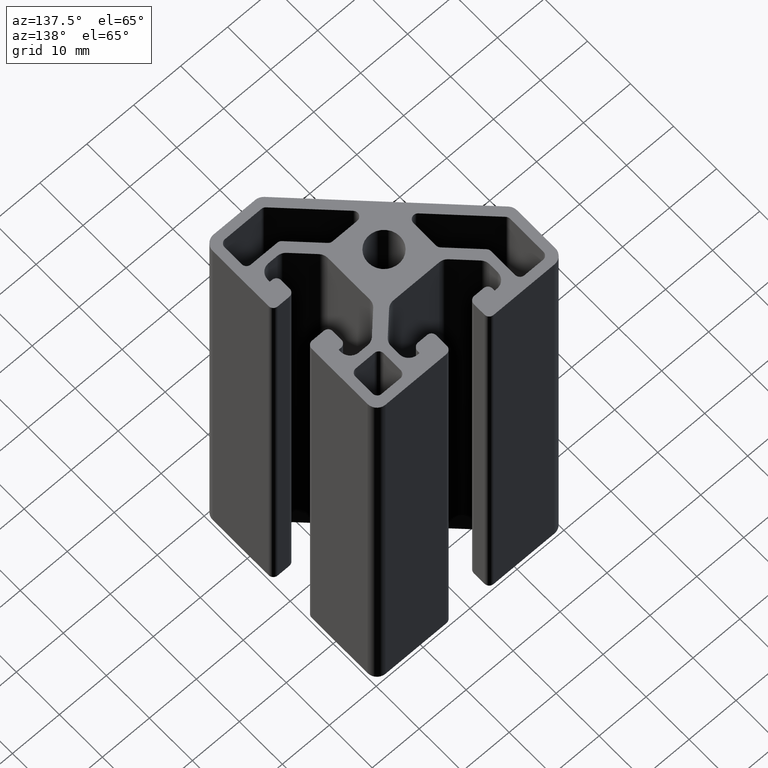
[diagram: clean part render]
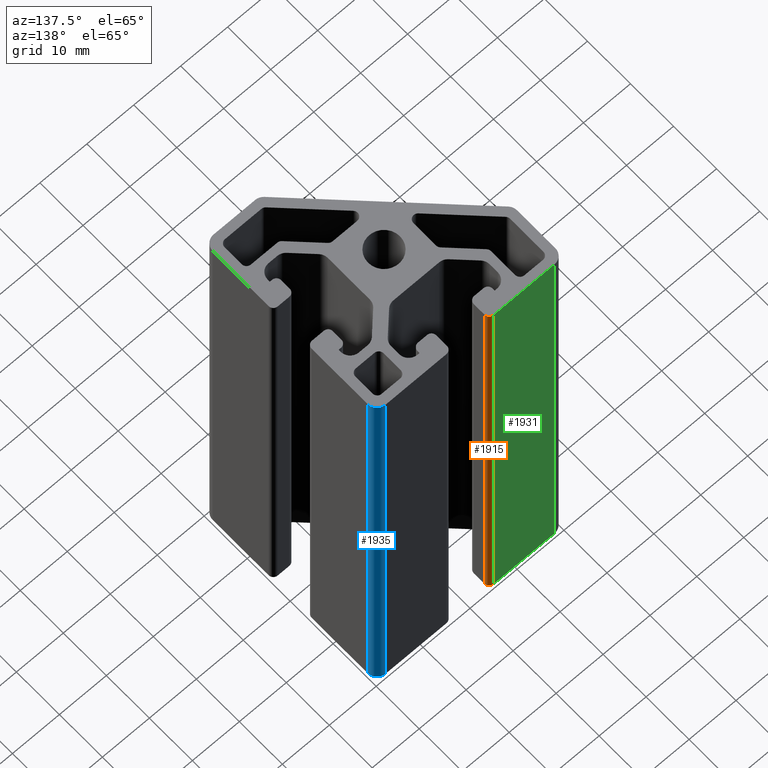
[diagram: same view with three faces highlighted in distinct colors, each labeled with its STEP entity id]
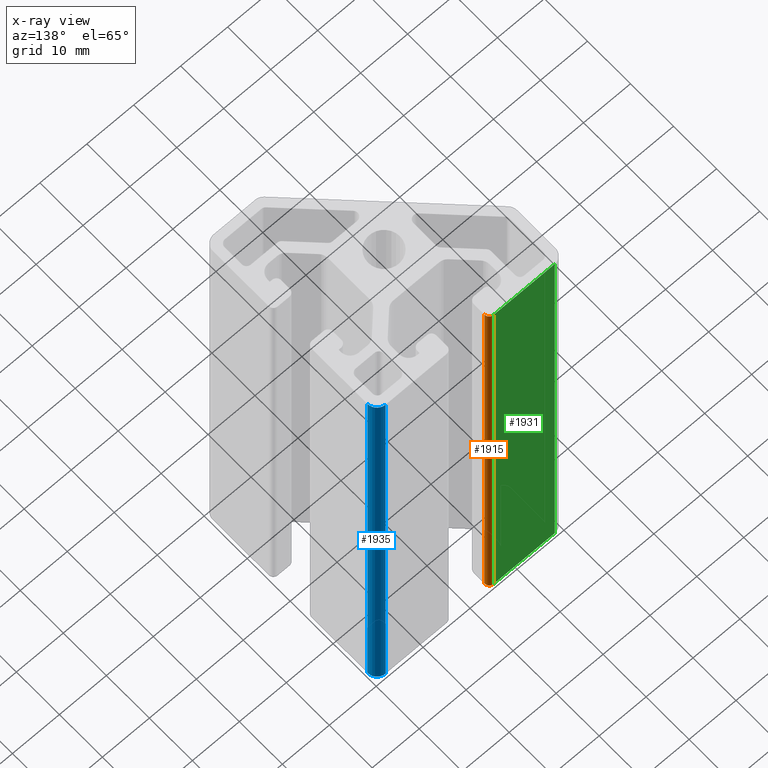
[diagram: x-ray of the same camera — body ghosted, the three highlighted faces saturated]
A machine part, auxiliary view with three faces highlighted in distinct colors.
The next image is the same camera in x-ray (body ghosted, the three faces saturated) — at least one of them is partly hidden behind the body in this view.
Their STEP definitions:

[orange] entity #1915 — the highlighted cylindrical surface (edge-blend (fillet) strip) has radius 1 mm, axis along (0, 0, 1).
#148=FACE_OUTER_BOUND('',#246,.T.);
#246=EDGE_LOOP('',(#1518,#1519,#1520,#1521));
#426=LINE('',#3148,#618);
#427=LINE('',#3154,#619);
#618=VECTOR('',#2570,100.);
#619=VECTOR('',#2577,100.);
#734=CIRCLE('',#2087,0.99999800405115);
#735=CIRCLE('',#2088,0.99999800405115);
#904=VERTEX_POINT('',#3144);
#905=VERTEX_POINT('',#3146);
#906=VERTEX_POINT('',#3150);
#907=VERTEX_POINT('',#3152);
#1164=EDGE_CURVE('',#905,#904,#426,.T.);
#1165=EDGE_CURVE('',#904,#906,#734,.T.);
#1166=EDGE_CURVE('',#907,#905,#735,.T.);
#1167=EDGE_CURVE('',#906,#907,#427,.T.);
#1518=ORIENTED_EDGE('',*,*,#1165,.F.);
#1519=ORIENTED_EDGE('',*,*,#1164,.F.);
#1520=ORIENTED_EDGE('',*,*,#1166,.F.);
#1521=ORIENTED_EDGE('',*,*,#1167,.F.);
#1832=CYLINDRICAL_SURFACE('',#2086,0.99999800405115);
#1915=ADVANCED_FACE('',(#148),#1832,.T.);
#2086=AXIS2_PLACEMENT_3D('',#3149,#2571,#2572);
#2087=AXIS2_PLACEMENT_3D('',#3151,#2573,#2574);
#2088=AXIS2_PLACEMENT_3D('',#3153,#2575,#2576);
#2570=DIRECTION('',(0.,0.,1.));
#2571=DIRECTION('center_axis',(0.,0.,1.));
#2572=DIRECTION('ref_axis',(-1.,0.,0.));
#2573=DIRECTION('center_axis',(0.,0.,1.));
#2574=DIRECTION('ref_axis',(-1.,0.,0.));
#2575=DIRECTION('center_axis',(0.,0.,-1.));
#2576=DIRECTION('ref_axis',(-1.,0.,0.));
#2577=DIRECTION('',(0.,0.,-1.));
#3144=CARTESIAN_POINT('',(-3.99999999999999,19.0000019959489,100.));
#3146=CARTESIAN_POINT('',(-3.99999999999999,19.0000019959489,0.));
#3148=CARTESIAN_POINT('',(-3.99999999999999,19.0000019959489,0.));
#3149=CARTESIAN_POINT('Origin',(-4.99999800405114,19.0000019959489,0.));
#3150=CARTESIAN_POINT('',(-4.99999800405114,20.,100.));
#3151=CARTESIAN_POINT('Origin',(-4.99999800405114,19.0000019959489,100.));
#3152=CARTESIAN_POINT('',(-4.99999800405114,20.,0.));
#3153=CARTESIAN_POINT('Origin',(-4.99999800405114,19.0000019959489,0.));
#3154=CARTESIAN_POINT('',(-4.99999800405114,20.,0.));

[blue] entity #1935 — the highlighted cylindrical surface (edge-blend (fillet) strip) has radius 2 mm, axis along (0, 0, 1).
#168=FACE_OUTER_BOUND('',#270,.T.);
#270=EDGE_LOOP('',(#1689,#1690,#1691,#1692));
#456=LINE('',#3237,#648);
#466=LINE('',#3263,#658);
#648=VECTOR('',#2658,100.);
#658=VECTOR('',#2686,100.);
#749=CIRCLE('',#2119,2.);
#752=CIRCLE('',#2125,2.);
#934=VERTEX_POINT('',#3234);
#935=VERTEX_POINT('',#3236);
#941=VERTEX_POINT('',#3255);
#942=VERTEX_POINT('',#3262);
#1208=EDGE_CURVE('',#934,#935,#456,.T.);
#1218=EDGE_CURVE('',#941,#935,#749,.T.);
#1222=EDGE_CURVE('',#942,#941,#466,.T.);
#1224=EDGE_CURVE('',#942,#934,#752,.T.);
#1689=ORIENTED_EDGE('',*,*,#1218,.T.);
#1690=ORIENTED_EDGE('',*,*,#1208,.F.);
#1691=ORIENTED_EDGE('',*,*,#1224,.F.);
#1692=ORIENTED_EDGE('',*,*,#1222,.T.);
#1840=CYLINDRICAL_SURFACE('',#2124,2.);
#1935=ADVANCED_FACE('',(#168),#1840,.T.);
#2119=AXIS2_PLACEMENT_3D('',#3256,#2675,#2676);
#2124=AXIS2_PLACEMENT_3D('',#3265,#2688,#2689);
#2125=AXIS2_PLACEMENT_3D('',#3266,#2690,#2691);
#2658=DIRECTION('',(0.,0.,1.));
#2675=DIRECTION('center_axis',(0.,0.,-1.));
#2676=DIRECTION('ref_axis',(-1.,0.,0.));
#2686=DIRECTION('',(0.,0.,1.));
#2688=DIRECTION('center_axis',(0.,0.,1.));
#2689=DIRECTION('ref_axis',(-1.,0.,0.));
#2690=DIRECTION('center_axis',(0.,0.,-1.));
#2691=DIRECTION('ref_axis',(-1.,0.,0.));
#3234=CARTESIAN_POINT('',(20.,18.,0.));
#3236=CARTESIAN_POINT('',(20.,18.,100.));
#3237=CARTESIAN_POINT('',(20.,18.,0.));
#3255=CARTESIAN_POINT('',(18.,20.,100.));
#3256=CARTESIAN_POINT('Origin',(18.,18.,100.));
#3262=CARTESIAN_POINT('',(18.,20.,0.));
#3263=CARTESIAN_POINT('',(18.,20.,0.));
#3265=CARTESIAN_POINT('Origin',(18.,18.,0.));
#3266=CARTESIAN_POINT('Origin',(18.,18.,0.));

[green] entity #1931 — the highlighted planar face has unit normal (0, 1, 0).
#70=PLANE('',#2116);
#164=FACE_OUTER_BOUND('',#262,.T.);
#262=EDGE_LOOP('',(#1582,#1583,#1584,#1585));
#427=LINE('',#3154,#619);
#461=LINE('',#3247,#653);
#462=LINE('',#3249,#654);
#463=LINE('',#3250,#655);
#619=VECTOR('',#2577,100.);
#653=VECTOR('',#2667,13.0000019959489);
#654=VECTOR('',#2668,100.);
#655=VECTOR('',#2669,13.0000019959489);
#906=VERTEX_POINT('',#3150);
#907=VERTEX_POINT('',#3152);
#938=VERTEX_POINT('',#3246);
#939=VERTEX_POINT('',#3248);
#1167=EDGE_CURVE('',#906,#907,#427,.T.);
#1213=EDGE_CURVE('',#938,#907,#461,.T.);
#1214=EDGE_CURVE('',#938,#939,#462,.T.);
#1215=EDGE_CURVE('',#939,#906,#463,.T.);
#1582=ORIENTED_EDGE('',*,*,#1167,.T.);
#1583=ORIENTED_EDGE('',*,*,#1213,.F.);
#1584=ORIENTED_EDGE('',*,*,#1214,.T.);
#1585=ORIENTED_EDGE('',*,*,#1215,.T.);
#1931=ADVANCED_FACE('',(#164),#70,.T.);
#2116=AXIS2_PLACEMENT_3D('',#3245,#2665,#2666);
#2577=DIRECTION('',(0.,0.,-1.));
#2665=DIRECTION('center_axis',(0.,1.,0.));
#2666=DIRECTION('ref_axis',(-1.,0.,0.));
#2667=DIRECTION('',(1.,0.,0.));
#2668=DIRECTION('',(0.,0.,1.));
#2669=DIRECTION('',(1.,0.,0.));
#3150=CARTESIAN_POINT('',(-4.99999800405114,20.,100.));
#3152=CARTESIAN_POINT('',(-4.99999800405114,20.,0.));
#3154=CARTESIAN_POINT('',(-4.99999800405114,20.,0.));
#3245=CARTESIAN_POINT('Origin',(18.,20.,0.));
#3246=CARTESIAN_POINT('',(-18.,20.,0.));
#3247=CARTESIAN_POINT('',(9.,20.,0.));
#3248=CARTESIAN_POINT('',(-18.,20.,100.));
#3249=CARTESIAN_POINT('',(-18.,20.,0.));
#3250=CARTESIAN_POINT('',(9.,20.,100.));